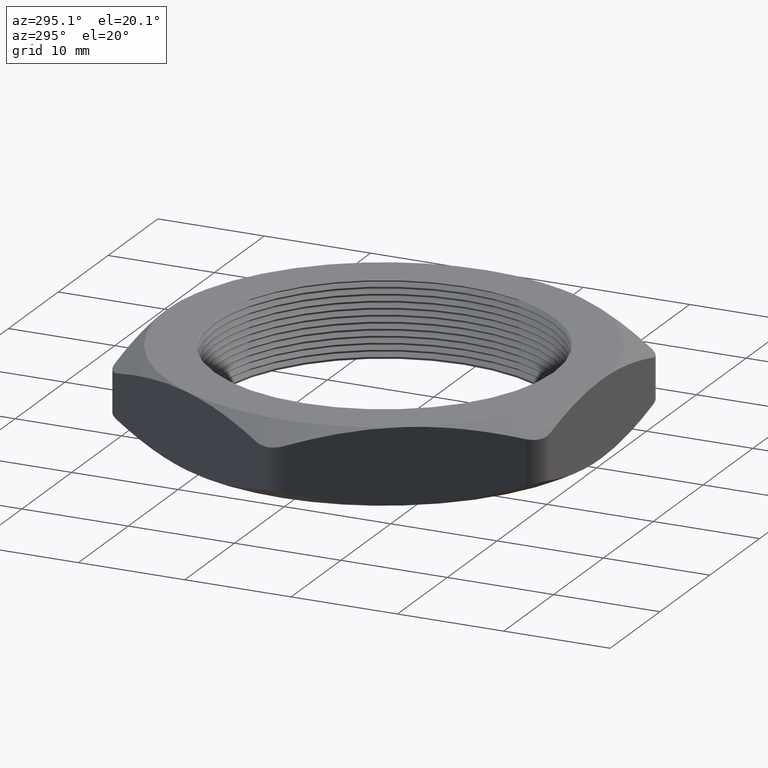
[diagram: clean part render]
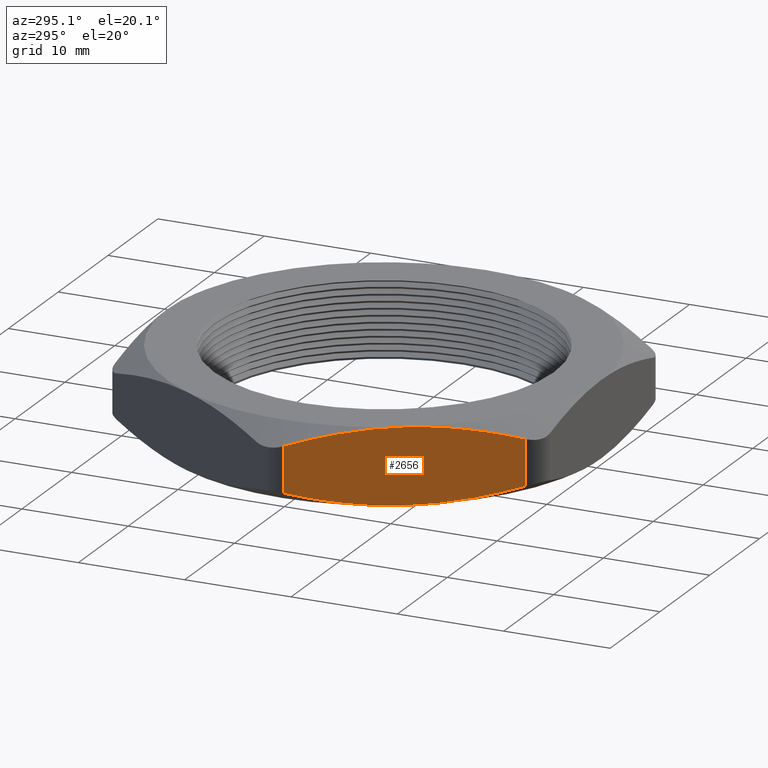
[diagram: same view with one face highlighted and labeled with its STEP entity id]
A machine part, auxiliary view. The second image highlights one B-rep face of the part: STEP entity #2656.
In plain terms, the highlighted planar face has unit normal (0.866, 0.5, 0).
Its self-contained STEP definition (entity closure, byte-faithful):
#1055 = DIRECTION ( 'NONE',  ( 0.0000000000000000000, 0.0000000000000000000, -1.000000000000000000 ) ) ;
#1056 = VECTOR ( 'NONE', #1055, 39.37007874015748100 ) ;
#1057 = CARTESIAN_POINT ( 'NONE',  ( -0.9006664199358162000, -0.04999999999999995400, 0.2800000000000000300 ) ) ;
#1058 = LINE ( 'NONE', #1057, #1056 ) ;
#1317 = CARTESIAN_POINT ( 'NONE',  ( -0.9006664199358162000, -0.04999999999999998200, 0.05603369894452663700 ) ) ;
#1369 = CARTESIAN_POINT ( 'NONE',  ( -0.9006664199358162000, -0.04999999999999994700, 0.2239663010554733800 ) ) ;
#1631 = CARTESIAN_POINT ( 'NONE',  ( -0.6971504500464734700, -0.4024999999999998600, 0.0000000000000000000 ) ) ;
#1632 = CARTESIAN_POINT ( 'NONE',  ( -0.6625603847151304600, -0.4624117505910125800, -4.161799677847901200E-017 ) ) ;
#1633 = CARTESIAN_POINT ( 'NONE',  ( -0.6283448200907458800, -0.5216748469301032400, 0.005214328754159711100 ) ) ;
#1634 = CARTESIAN_POINT ( 'NONE',  ( -0.5605546474726131900, -0.6390908701585735800, 0.02456729141652616200 ) ) ;
#1635 = CARTESIAN_POINT ( 'NONE',  ( -0.5269768284203574200, -0.6972493587644345000, 0.03866121642459306700 ) ) ;
#1636 = CARTESIAN_POINT ( 'NONE',  ( -0.4936344801571303500, -0.7550000000000000000, 0.05603369894452672100 ) ) ;
#1638 = CARTESIAN_POINT ( 'NONE',  ( -0.6971504500464734700, -0.4024999999999998600, 0.0000000000000000000 ) ) ;
#1639 = CARTESIAN_POINT ( 'NONE',  ( -0.4936344801571303500, -0.7550000000000000000, 0.05603369894452672100 ) ) ;
#1640 = B_SPLINE_CURVE_WITH_KNOTS ( 'NONE', 3,
 ( #1636, #1635, #1634, #1633, #1632, #1631 ),
 .UNSPECIFIED., .F., .F.,
 ( 4, 2, 4 ),
 ( 0.001509108341423811600, 0.006727077222619351500, 0.01194504610381489200 ),
 .UNSPECIFIED. ) ;
#1678 = CARTESIAN_POINT ( 'NONE',  ( -0.6799256321757857200, -0.4323342597031505900, 0.2800000000000000300 ) ) ;
#1679 = CARTESIAN_POINT ( 'NONE',  ( -0.6971504500464734700, -0.4024999999999998600, 0.2800000000000000300 ) ) ;
#1680 = B_SPLINE_CURVE_WITH_KNOTS ( 'NONE', 3,
 ( #1679, #1678, #1734, #1733, #1732, #1731, #1730, #1729 ),
 .UNSPECIFIED., .F., .F.,
 ( 4, 2, 2, 4 ),
 ( 0.01194504610381488300, 0.01454343852581664800, 0.01714183094781841100, 0.02233861579182194100 ),
 .UNSPECIFIED. ) ;
#1681 = CARTESIAN_POINT ( 'NONE',  ( -0.6971504500464734700, -0.4024999999999998600, 0.2800000000000000300 ) ) ;
#1710 = CARTESIAN_POINT ( 'NONE',  ( -0.9006664199358162000, -0.04999999999999998200, 0.05603369894452663700 ) ) ;
#1711 = CARTESIAN_POINT ( 'NONE',  ( -0.8673990785354376300, -0.1076207255381948800, 0.03870029751760500900 ) ) ;
#1712 = CARTESIAN_POINT ( 'NONE',  ( -0.8338630964814910400, -0.1657067503373488000, 0.02461051784923735200 ) ) ;
#1713 = CARTESIAN_POINT ( 'NONE',  ( -0.7830122693068174400, -0.2537829666107872500, 0.01007867563172840600 ) ) ;
#1714 = CARTESIAN_POINT ( 'NONE',  ( -0.7659707989176647300, -0.2832996591604806700, 0.006335831105648190800 ) ) ;
#1715 = CARTESIAN_POINT ( 'NONE',  ( -0.7316854323005579400, -0.3426836560974356700, 0.001294272703509798100 ) ) ;
#1716 = CARTESIAN_POINT ( 'NONE',  ( -0.7143752679171605500, -0.3726657402968487900, -3.796641773421340800E-017 ) ) ;
#1717 = CARTESIAN_POINT ( 'NONE',  ( -0.6971504500464734700, -0.4024999999999998600, 0.0000000000000000000 ) ) ;
#1720 = B_SPLINE_CURVE_WITH_KNOTS ( 'NONE', 3,
 ( #1717, #1716, #1715, #1714, #1713, #1712, #1711, #1710 ),
 .UNSPECIFIED., .F., .F.,
 ( 4, 2, 2, 4 ),
 ( 0.01194504610381489200, 0.01454343852581665300, 0.01714183094781841400, 0.02233861579182193400 ),
 .UNSPECIFIED. ) ;
#1722 = CARTESIAN_POINT ( 'NONE',  ( -0.6971504500464734700, -0.4024999999999998600, 0.2800000000000000300 ) ) ;
#1723 = CARTESIAN_POINT ( 'NONE',  ( -0.7317405153778161500, -0.3425882494089870200, 0.2800000000000001400 ) ) ;
#1724 = CARTESIAN_POINT ( 'NONE',  ( -0.7659560800022009500, -0.2833251530698962000, 0.2747856712458402500 ) ) ;
#1725 = CARTESIAN_POINT ( 'NONE',  ( -0.8337462526203335300, -0.1659091298414263600, 0.2554327085834740000 ) ) ;
#1726 = CARTESIAN_POINT ( 'NONE',  ( -0.8673240716725890700, -0.1077506412355651200, 0.2413387835754069500 ) ) ;
#1727 = CARTESIAN_POINT ( 'NONE',  ( -0.9006664199358162000, -0.04999999999999994700, 0.2239663010554733800 ) ) ;
#1728 = B_SPLINE_CURVE_WITH_KNOTS ( 'NONE', 3,
 ( #1727, #1726, #1725, #1724, #1723, #1722 ),
 .UNSPECIFIED., .F., .F.,
 ( 4, 2, 4 ),
 ( 0.001509108341423813400, 0.006727077222619348000, 0.01194504610381488300 ),
 .UNSPECIFIED. ) ;
#1729 = CARTESIAN_POINT ( 'NONE',  ( -0.4936344801571304600, -0.7549999999999998900, 0.2239663010554733800 ) ) ;
#1730 = CARTESIAN_POINT ( 'NONE',  ( -0.5269018215575088600, -0.6973792744618049200, 0.2412997024823950500 ) ) ;
#1731 = CARTESIAN_POINT ( 'NONE',  ( -0.5604378036114555700, -0.6392932496626510000, 0.2553894821507626800 ) ) ;
#1732 = CARTESIAN_POINT ( 'NONE',  ( -0.6112886307861290500, -0.5512170333892124600, 0.2699213243682716000 ) ) ;
#1733 = CARTESIAN_POINT ( 'NONE',  ( -0.6283301011752821000, -0.5217003408395187700, 0.2736641688943518000 ) ) ;
#1734 = CARTESIAN_POINT ( 'NONE',  ( -0.6626154677923888900, -0.4623163439025638200, 0.2787057272964902400 ) ) ;
#1825 = CARTESIAN_POINT ( 'NONE',  ( -0.4936344801571304600, -0.7549999999999998900, 0.2239663010554733800 ) ) ;
#1826 = DIRECTION ( 'NONE',  ( 0.0000000000000000000, 0.0000000000000000000, 1.000000000000000000 ) ) ;
#1827 = VECTOR ( 'NONE', #1826, 39.37007874015748100 ) ;
#1828 = CARTESIAN_POINT ( 'NONE',  ( -0.4936344801571304600, -0.7550000000000000000, 0.2800000000000000300 ) ) ;
#1829 = LINE ( 'NONE', #1828, #1827 ) ;
#1835 = DIRECTION ( 'NONE',  ( -0.4999999999999996100, 0.8660254037844388200, 0.0000000000000000000 ) ) ;
#1836 = DIRECTION ( 'NONE',  ( 0.8660254037844388200, 0.4999999999999996100, 0.0000000000000000000 ) ) ;
#1845 = CARTESIAN_POINT ( 'NONE',  ( -0.9295339333952975500, 1.407013702164143500E-016, 0.2800000000000000300 ) ) ;
#1846 = PLANE ( 'NONE',  #1848 ) ;
#1848 = AXIS2_PLACEMENT_3D ( 'NONE', #1845, #1836, #1835 ) ;
#1849 = FACE_OUTER_BOUND ( 'NONE', #2657, .T. ) ;
#2248 = EDGE_CURVE ( 'NONE', #2411, #2405, #1058, .T. ) ;
#2405 = VERTEX_POINT ( 'NONE', #1317 ) ;
#2411 = VERTEX_POINT ( 'NONE', #1369 ) ;
#2557 = ORIENTED_EDGE ( 'NONE', *, *, #2558, .F. ) ;
#2558 = EDGE_CURVE ( 'NONE', #2559, #2560, #1640, .T. ) ;
#2559 = VERTEX_POINT ( 'NONE', #1639 ) ;
#2560 = VERTEX_POINT ( 'NONE', #1638 ) ;
#2595 = VERTEX_POINT ( 'NONE', #1681 ) ;
#2596 = EDGE_CURVE ( 'NONE', #2595, #2665, #1680, .T. ) ;
#2597 = EDGE_CURVE ( 'NONE', #2411, #2595, #1728, .T. ) ;
#2598 = ORIENTED_EDGE ( 'NONE', *, *, #2248, .T. ) ;
#2599 = ORIENTED_EDGE ( 'NONE', *, *, #2600, .F. ) ;
#2600 = EDGE_CURVE ( 'NONE', #2560, #2405, #1720, .T. ) ;
#2609 = ORIENTED_EDGE ( 'NONE', *, *, #2597, .F. ) ;
#2656 = ADVANCED_FACE ( 'NONE', ( #1849 ), #1846, .F. ) ;
#2657 = EDGE_LOOP ( 'NONE', ( #2557, #2663, #2666, #2609, #2598, #2599 ) ) ;
#2663 = ORIENTED_EDGE ( 'NONE', *, *, #2664, .T. ) ;
#2664 = EDGE_CURVE ( 'NONE', #2559, #2665, #1829, .T. ) ;
#2665 = VERTEX_POINT ( 'NONE', #1825 ) ;
#2666 = ORIENTED_EDGE ( 'NONE', *, *, #2596, .F. ) ;